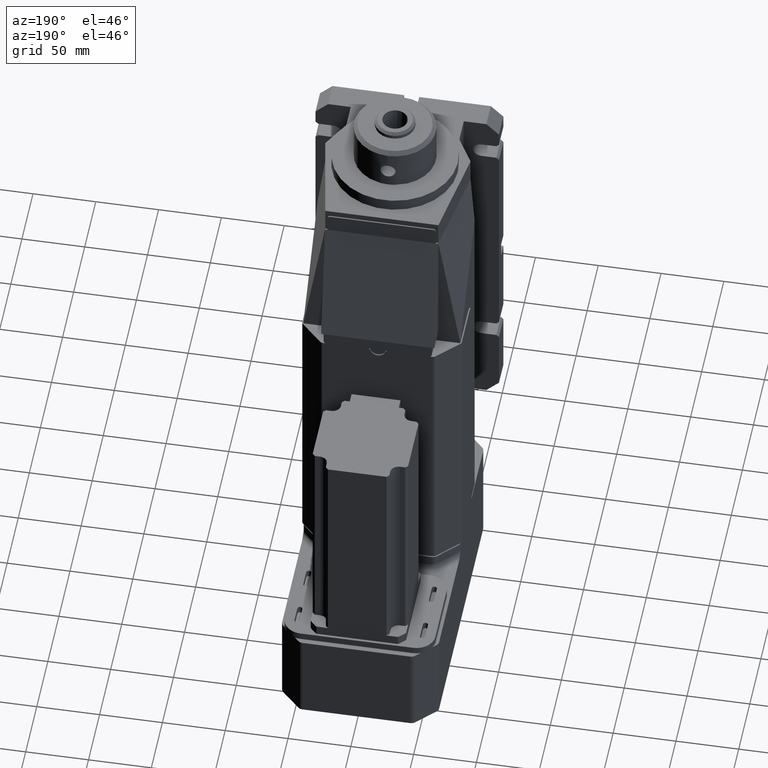
[diagram: clean part render]
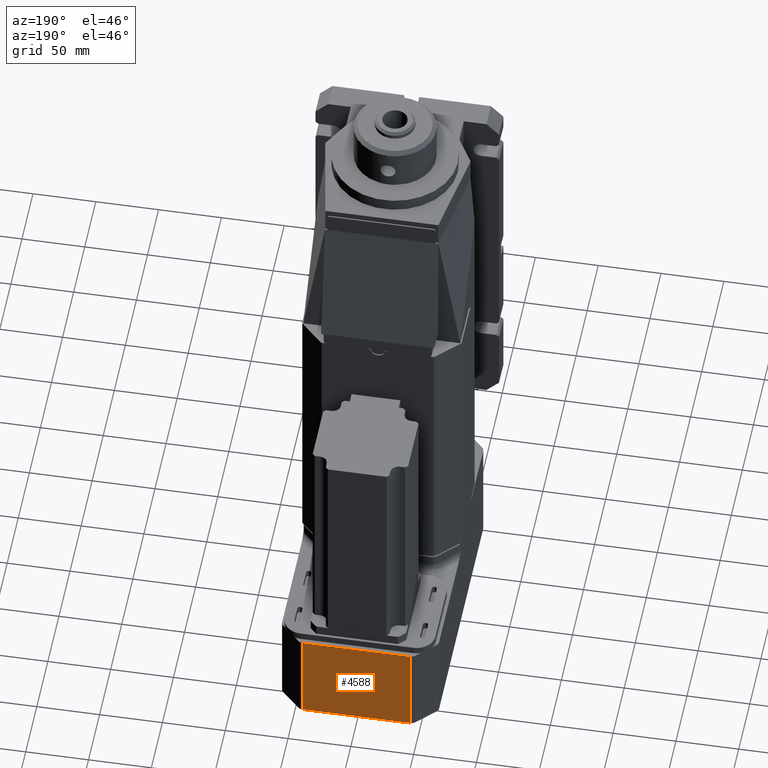
[diagram: same view with one face highlighted and labeled with its STEP entity id]
A machine part, auxiliary view. The second image highlights one B-rep face of the part: STEP entity #4588.
In plain terms, the highlighted planar face has unit normal (0, 1, 0).
Its self-contained STEP definition (entity closure, byte-faithful):
#1236 = VERTEX_POINT ( 'NONE', #8359 ) ;
#4382 = EDGE_CURVE ( 'NONE', #4383, #1236, #8474, .T. ) ;
#4383 = VERTEX_POINT ( 'NONE', #8476 ) ;
#4527 = VERTEX_POINT ( 'NONE', #8708 ) ;
#4529 = EDGE_CURVE ( 'NONE', #1236, #4527, #8707, .T. ) ;
#4588 = ADVANCED_FACE ( 'NONE', ( #8798 ), #8797, .T. ) ;
#4589 = EDGE_LOOP ( 'NONE', ( #4590, #4591, #4592, #4595 ) ) ;
#4590 = ORIENTED_EDGE ( 'NONE', *, *, #4382, .T. ) ;
#4591 = ORIENTED_EDGE ( 'NONE', *, *, #4529, .T. ) ;
#4592 = ORIENTED_EDGE ( 'NONE', *, *, #4593, .T. ) ;
#4593 = EDGE_CURVE ( 'NONE', #4527, #4594, #8792, .T. ) ;
#4594 = VERTEX_POINT ( 'NONE', #8788 ) ;
#4595 = ORIENTED_EDGE ( 'NONE', *, *, #4596, .F. ) ;
#4596 = EDGE_CURVE ( 'NONE', #4383, #4594, #8787, .T. ) ;
#8359 = CARTESIAN_POINT ( 'NONE',  ( 42.92893218813445300, 175.0000000000000300, -12.99999999999999800 ) ) ;
#8473 = VECTOR ( 'NONE', #8478, 1000.000000000000000 ) ;
#8474 = LINE ( 'NONE', #8477, #8473 ) ;
#8476 = CARTESIAN_POINT ( 'NONE',  ( -42.92893218813448200, 175.0000000000000000, -12.99999999999999800 ) ) ;
#8477 = CARTESIAN_POINT ( 'NONE',  ( -62.50000000000000000, 175.0000000000000300, -12.99999999999999800 ) ) ;
#8478 = DIRECTION ( 'NONE',  ( 1.000000000000000000, 0.0000000000000000000, 0.0000000000000000000 ) ) ;
#8704 = DIRECTION ( 'NONE',  ( 0.0000000000000000000, 0.0000000000000000000, -1.000000000000000000 ) ) ;
#8705 = VECTOR ( 'NONE', #8704, 1000.000000000000000 ) ;
#8706 = CARTESIAN_POINT ( 'NONE',  ( 42.92893218813445300, 175.0000000000000300, -88.00000000000000000 ) ) ;
#8707 = LINE ( 'NONE', #8706, #8705 ) ;
#8708 = CARTESIAN_POINT ( 'NONE',  ( 42.92893218813445300, 175.0000000000000300, -88.00000000000000000 ) ) ;
#8784 = DIRECTION ( 'NONE',  ( 0.0000000000000000000, 0.0000000000000000000, -1.000000000000000000 ) ) ;
#8785 = VECTOR ( 'NONE', #8784, 1000.000000000000000 ) ;
#8786 = CARTESIAN_POINT ( 'NONE',  ( -42.92893218813448200, 175.0000000000000000, -88.00000000000000000 ) ) ;
#8787 = LINE ( 'NONE', #8786, #8785 ) ;
#8788 = CARTESIAN_POINT ( 'NONE',  ( -42.92893218813448200, 175.0000000000000000, -88.00000000000000000 ) ) ;
#8789 = DIRECTION ( 'NONE',  ( -1.000000000000000000, 0.0000000000000000000, 0.0000000000000000000 ) ) ;
#8790 = VECTOR ( 'NONE', #8789, 1000.000000000000000 ) ;
#8791 = CARTESIAN_POINT ( 'NONE',  ( -62.49999999999997200, 175.0000000000000300, -88.00000000000000000 ) ) ;
#8792 = LINE ( 'NONE', #8791, #8790 ) ;
#8793 = DIRECTION ( 'NONE',  ( 0.0000000000000000000, 0.0000000000000000000, 1.000000000000000000 ) ) ;
#8794 = DIRECTION ( 'NONE',  ( 0.0000000000000000000, 1.000000000000000000, 0.0000000000000000000 ) ) ;
#8795 = CARTESIAN_POINT ( 'NONE',  ( -62.50000000000000000, 175.0000000000000300, -88.00000000000000000 ) ) ;
#8796 = AXIS2_PLACEMENT_3D ( 'NONE', #8795, #8794, #8793 ) ;
#8797 = PLANE ( 'NONE',  #8796 ) ;
#8798 = FACE_OUTER_BOUND ( 'NONE', #4589, .T. ) ;